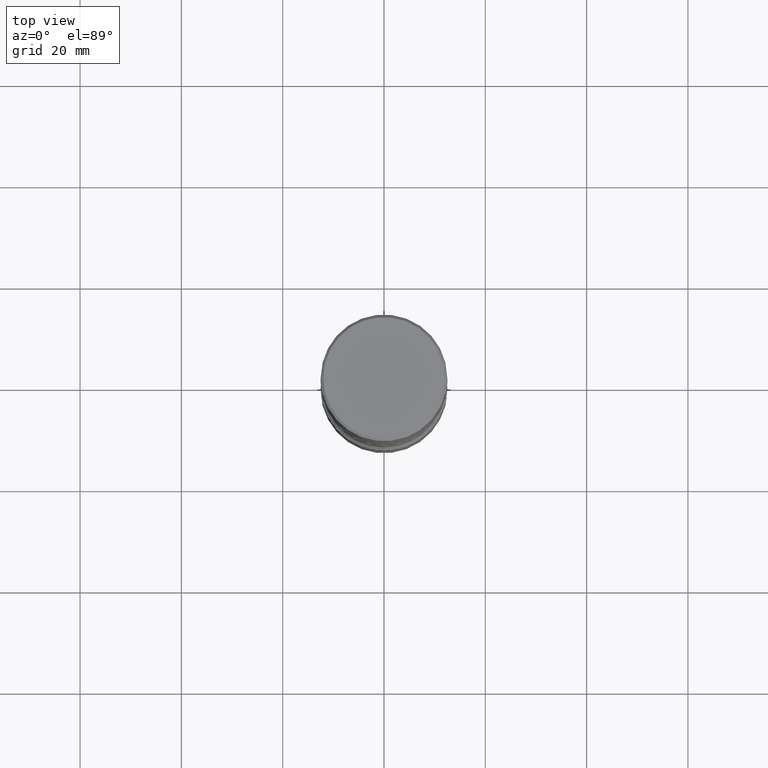
[diagram: clean part render]
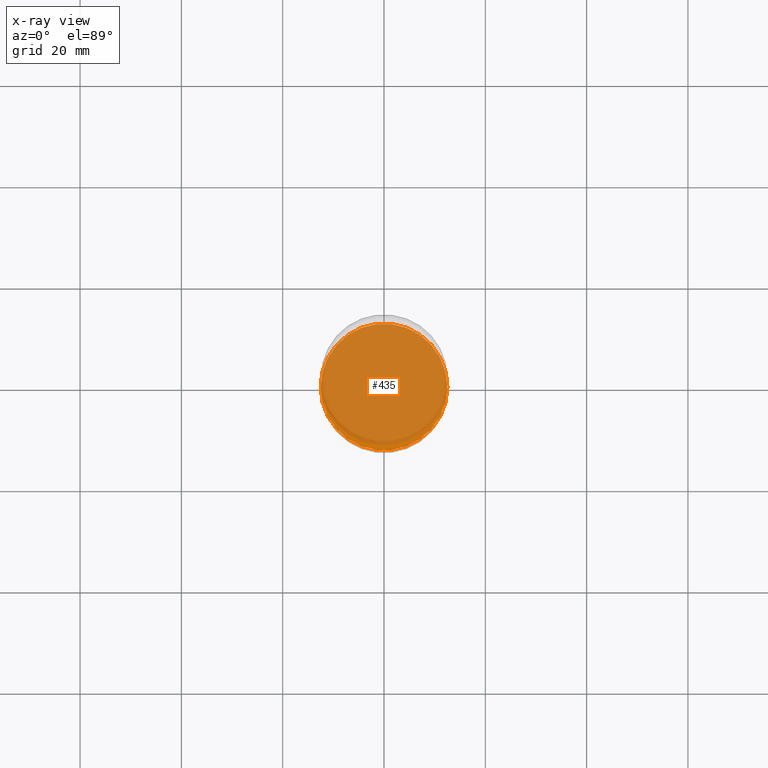
[diagram: x-ray — body ghosted, one internal face saturated and labeled with its STEP entity id]
A machine part, top view, then the same camera in x-ray: the body is ghosted and one INTERNAL B-rep face — a face not visible from any outside direction — is saturated and labeled: STEP entity #435.
In plain terms, the highlighted planar face has unit normal (0, -0, -1).
Its self-contained STEP definition (entity closure, byte-faithful):
#51 = CARTESIAN_POINT ( 'NONE',  ( 1.010907895100811684E-28, -1.443308555850979562E-14, -4.133799999999999919 ) ) ;
#66 = AXIS2_PLACEMENT_3D ( 'NONE', #525, #308, #266 ) ;
#112 = DIRECTION ( 'NONE',  ( -2.445468806185136597E-29, 3.491481338843145583E-15, 1.000000000000000000 ) ) ;
#132 = CARTESIAN_POINT ( 'NONE',  ( 0.4921500000000001984, -1.786975064033309297E-14, -4.133799999999999919 ) ) ;
#138 = CIRCLE ( 'NONE', #66, 0.4921500000000001984 ) ;
#145 = EDGE_CURVE ( 'NONE', #502, #517, #138, .T. ) ;
#170 = AXIS2_PLACEMENT_3D ( 'NONE', #424, #466, #428 ) ;
#172 = FACE_OUTER_BOUND ( 'NONE', #204, .T. ) ;
#195 = DIRECTION ( 'NONE',  ( 1.000000000000000000, -6.982962677686267499E-15, 0.000000000000000000 ) ) ;
#204 = EDGE_LOOP ( 'NONE', ( #429, #469 ) ) ;
#214 = CARTESIAN_POINT ( 'NONE',  ( -0.4921500000000002539, -1.313560815387070066E-14, -4.133799999999999919 ) ) ;
#266 = DIRECTION ( 'NONE',  ( 1.000000000000000000, -6.982962677686267499E-15, 0.000000000000000000 ) ) ;
#289 = CIRCLE ( 'NONE', #374, 0.4921500000000001984 ) ;
#298 = EDGE_CURVE ( 'NONE', #517, #502, #289, .T. ) ;
#308 = DIRECTION ( 'NONE',  ( -2.445468806185136597E-29, 3.491481338843145583E-15, 1.000000000000000000 ) ) ;
#374 = AXIS2_PLACEMENT_3D ( 'NONE', #51, #112, #195 ) ;
#424 = CARTESIAN_POINT ( 'NONE',  ( 1.010907895100811684E-28, -1.443308555850979562E-14, -4.133799999999999919 ) ) ;
#428 = DIRECTION ( 'NONE',  ( -1.000000000000000000, 6.982962677686265922E-15, -4.876176775795935793E-29 ) ) ;
#429 = ORIENTED_EDGE ( 'NONE', *, *, #298, .T. ) ;
#435 = ADVANCED_FACE ( 'NONE', ( #172 ), #474, .F. ) ;
#466 = DIRECTION ( 'NONE',  ( 2.438088387897960049E-29, -3.491481338843145188E-15, -1.000000000000000000 ) ) ;
#469 = ORIENTED_EDGE ( 'NONE', *, *, #145, .T. ) ;
#474 = PLANE ( 'NONE',  #170 ) ;
#502 = VERTEX_POINT ( 'NONE', #214 ) ;
#517 = VERTEX_POINT ( 'NONE', #132 ) ;
#525 = CARTESIAN_POINT ( 'NONE',  ( 1.010907895100811684E-28, -1.443308555850979562E-14, -4.133799999999999919 ) ) ;